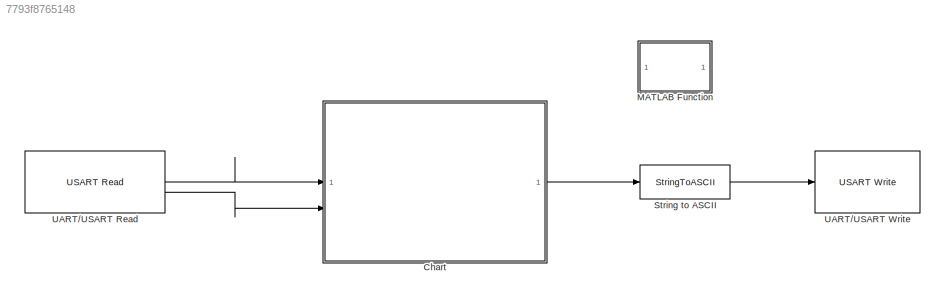
MODEL slx_7793f8765148
KIND model
CONFIG AbsTol = auto
CONFIG EnableMultiTasking = on
CONFIG FixedStep = auto
CONFIG MaxStep = 0.1
CONFIG MinStep = auto
CONFIG RelTol = 1e-3
CONFIG SampleTimeConstraint = Unconstrained
CONFIG SolverName = FixedStepAuto
CONFIG StartTime = 0.0
CONFIG StopTime = 10.0
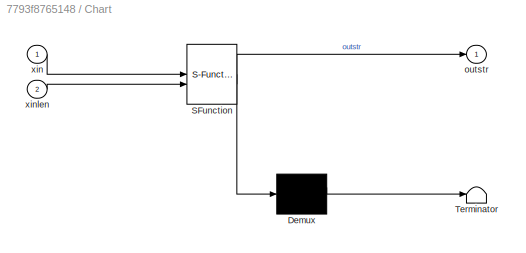
BLOCK [SubSystem] Chart
  ErrorFcn = Stateflow.Translate.translate
  PermitHierarchicalResolution = ExplicitOnly
  SFBlockType = Chart
  TreatAsAtomicUnit = on
BLOCK [Demux] Chart/ Demux 
  Outputs = 1
BLOCK [S-Function] Chart/ SFunction 
  EnableBusSupport = on
  FunctionName = sf_sfun
  PortCounts = [2 2]
  SFcnIsStateOwnerBlock = off
  SFunctionDeploymentMode = off
  Tag = Stateflow S-Function 3
BLOCK [Terminator] Chart/ Terminator 
BLOCK [Outport] Chart/outstr
BLOCK [Inport] Chart/xin
BLOCK [Inport] Chart/xinlen
  Port = 2
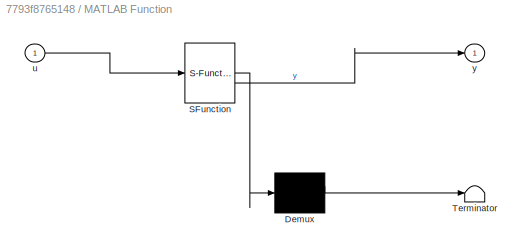
BLOCK [SubSystem] MATLAB Function
  ErrorFcn = Stateflow.Translate.translate
  PermitHierarchicalResolution = ExplicitOnly
  SFBlockType = MATLAB Function
  TreatAsAtomicUnit = on
BLOCK [Demux] MATLAB Function/ Demux 
  Outputs = 1
BLOCK [S-Function] MATLAB Function/ SFunction 
  EnableBusSupport = on
  FunctionName = sf_sfun
  PortCounts = [1 2]
  SFcnIsStateOwnerBlock = off
  SFunctionDeploymentMode = off
  Tag = Stateflow S-Function 2
BLOCK [Terminator] MATLAB Function/ Terminator 
BLOCK [Inport] MATLAB Function/u
BLOCK [Outport] MATLAB Function/y
BLOCK [StringToASCII] String to ASCII
  OutputVectorSize = 120
BLOCK [Reference] UART//USART Read  REF=stm32blockslib/UART//USART Read
  LibrarySourceBlock = stm32g4xxblockslib/UART//USART Read
  SourceBlock = stm32blockslib/UART//USART Read
  SourceType = stm32cube.blocks.UARTRead
BLOCK [Reference] UART//USART Write  REF=stm32blockslib/UART//USART Write
  LibrarySourceBlock = stm32g4xxblockslib/UART//USART Write
  SourceBlock = stm32blockslib/UART//USART Write
  SourceType = stm32cube.blocks.UARTWrite
LINE Chart:1 -> String to ASCII:1
LINE String to ASCII:1 -> UART//USART Write:1
LINE UART//USART Read:1 -> Chart:1
LINE UART//USART Read:2 -> Chart:2
CHART MATLAB Function states=1 transitions=1
  STATE_LABEL 'eML_blk_kernel()'
  STATE_LABEL 'SCRIPT:\nfunction y = prova(u)\n\ny = zeros(127)\nz = convertStringsToChars(u)\nl = min(length(z),length(y));\nfor i = 1:l\n   y(i) = z(i);\nend\n\nend\n'
CHART Chart states=3 transitions=3
  STATE_LABEL 'outString = prepareMenu'
  STATE_LABEL 'SCRIPT:\nfunction outString = prepareMenu\n\noutString = "Cosa vuoi fare?" + newline + ...\n    "1. Accendere un led" + newline + ...\n    "2. Azionare il motore" + newline + ...\n    "3. Riavviare il sistema" + newline;\n\nend\n\n\n \n'
  STATE_LABEL 'PRINT\nen: outstr = prepareMenu\ndu: outstr = ""'
  STATE_LABEL 'LEDON\nen: outstr = "Led acceso" + newline;\ndu: outstr = ""'
CHART  states=0 transitions=0
CHART  states=0 transitions=0
